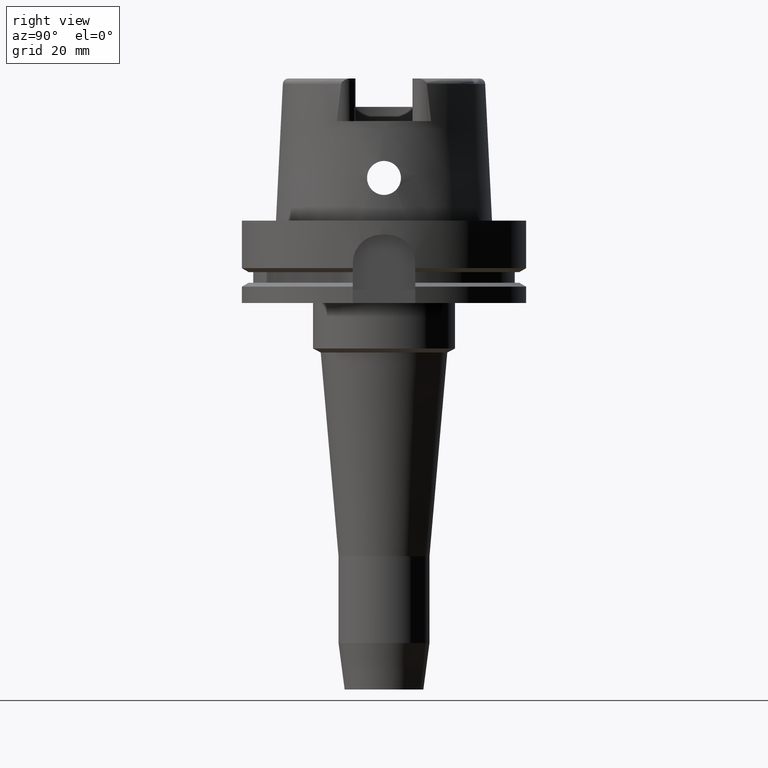
[diagram: clean part render]
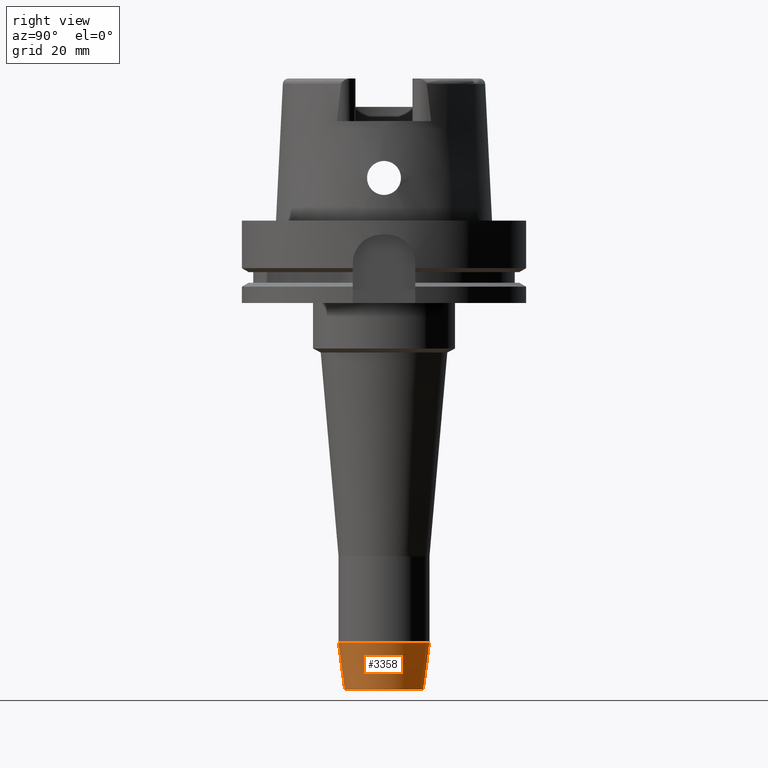
[diagram: same view with one face highlighted and labeled with its STEP entity id]
A machine part, right view. The second image highlights one B-rep face of the part: STEP entity #3358.
In plain terms, the highlighted conical surface has half-angle 7.5 deg.
Its self-contained STEP definition (entity closure, byte-faithful):
#1059=CARTESIAN_POINT('',(0.E0,0.E0,-1.65E2));
#1060=DIRECTION('',(0.E0,0.E0,1.E0));
#1061=DIRECTION('',(0.E0,-1.E0,0.E0));
#1062=AXIS2_PLACEMENT_3D('',#1059,#1060,#1061);
#1091=DIRECTION('',(0.E0,-1.305261922199E-1,-9.914448613738E-1));
#1092=VECTOR('',#1091,1.650626562654E1);
#1093=CARTESIAN_POINT('',(0.E0,1.6E1,-1.486349477641E2));
#1094=LINE('',#1093,#1092);
#1098=CARTESIAN_POINT('',(0.E0,0.E0,-1.486349477641E2));
#1099=DIRECTION('',(0.E0,0.E0,1.E0));
#1100=DIRECTION('',(0.E0,-1.E0,0.E0));
#1101=AXIS2_PLACEMENT_3D('',#1098,#1099,#1100);
#1114=DIRECTION('',(0.E0,1.305261922199E-1,-9.914448613738E-1));
#1115=VECTOR('',#1114,1.650626562654E1);
#1116=CARTESIAN_POINT('',(0.E0,-1.6E1,-1.486349477641E2));
#1117=LINE('',#1116,#1115);
#2405=CARTESIAN_POINT('',(0.E0,-1.38455E1,-1.65E2));
#2406=CARTESIAN_POINT('',(0.E0,1.38455E1,-1.65E2));
#2407=VERTEX_POINT('',#2405);
#2408=VERTEX_POINT('',#2406);
#2409=CARTESIAN_POINT('',(0.E0,1.6E1,-1.486349477641E2));
#2410=VERTEX_POINT('',#2409);
#2411=CARTESIAN_POINT('',(0.E0,-1.6E1,-1.486349477641E2));
#2412=VERTEX_POINT('',#2411);
#3344=CARTESIAN_POINT('',(0.E0,0.E0,-1.568174738821E2));
#3345=DIRECTION('',(0.E0,0.E0,1.E0));
#3346=DIRECTION('',(0.E0,1.E0,0.E0));
#3347=AXIS2_PLACEMENT_3D('',#3344,#3345,#3346);
#3348=CONICAL_SURFACE('',#3347,1.492275000001E1,7.5E0);
#3350=ORIENTED_EDGE('',*,*,#3349,.T.);
#3351=ORIENTED_EDGE('',*,*,#3333,.F.);
#3353=ORIENTED_EDGE('',*,*,#3352,.F.);
#3355=ORIENTED_EDGE('',*,*,#3354,.T.);
#3356=EDGE_LOOP('',(#3350,#3351,#3353,#3355));
#3357=FACE_OUTER_BOUND('',#3356,.F.);
#1063=CIRCLE('',#1062,1.38455E1);
#1102=CIRCLE('',#1101,1.600000000001E1);
#3333=EDGE_CURVE('',#2407,#2408,#1063,.T.);
#3349=EDGE_CURVE('',#2410,#2408,#1094,.T.);
#3352=EDGE_CURVE('',#2412,#2407,#1117,.T.);
#3354=EDGE_CURVE('',#2412,#2410,#1102,.T.);
#3358=ADVANCED_FACE('',(#3357),#3348,.T.);